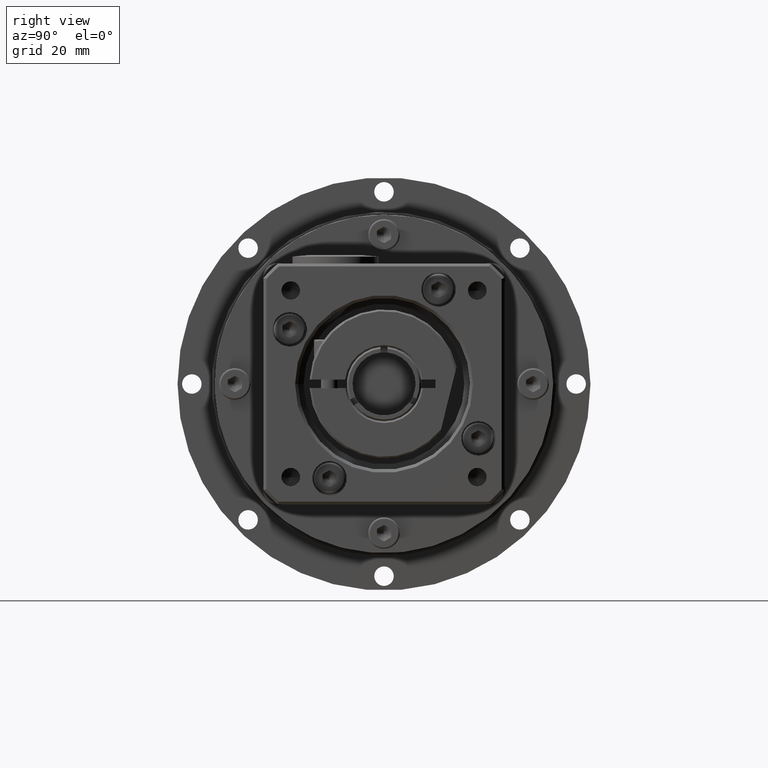
[diagram: clean part render]
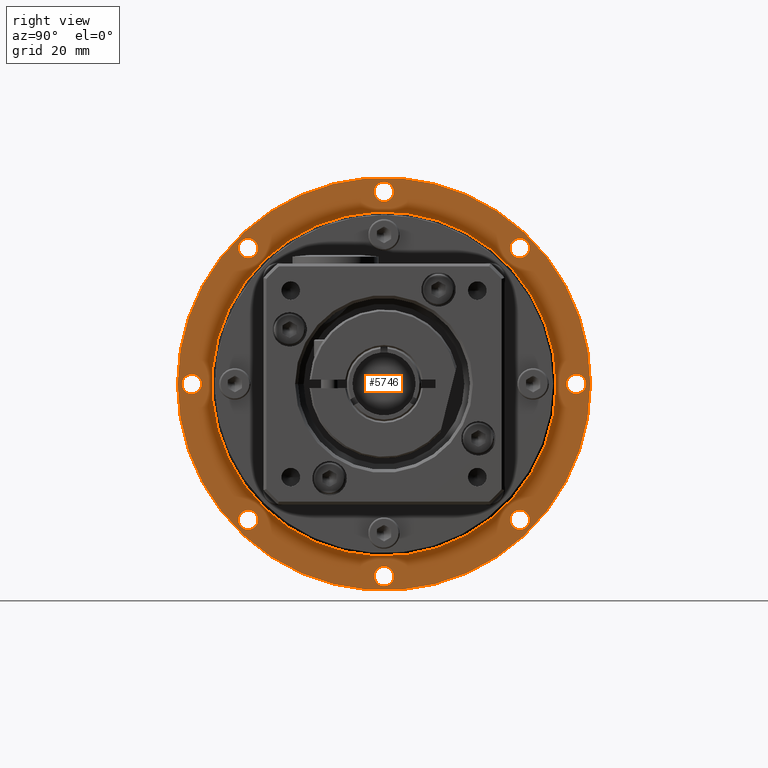
[diagram: same view with one face highlighted and labeled with its STEP entity id]
A machine part, right view. The second image highlights one B-rep face of the part: STEP entity #5746.
In plain terms, the highlighted planar face has unit normal (1, -0, 0).
Its self-contained STEP definition (entity closure, byte-faithful):
#858=PLANE('',#6341);
#1069=FACE_BOUND('',#1904,.T.);
#1070=FACE_BOUND('',#1905,.T.);
#1071=FACE_BOUND('',#1906,.T.);
#1072=FACE_BOUND('',#1907,.T.);
#1073=FACE_BOUND('',#1908,.T.);
#1074=FACE_BOUND('',#1909,.T.);
#1075=FACE_BOUND('',#1910,.T.);
#1076=FACE_BOUND('',#1911,.T.);
#1077=FACE_BOUND('',#1912,.T.);
#1390=FACE_OUTER_BOUND('',#1903,.T.);
#1903=EDGE_LOOP('',(#4404));
#1904=EDGE_LOOP('',(#4405));
#1905=EDGE_LOOP('',(#4406));
#1906=EDGE_LOOP('',(#4407));
#1907=EDGE_LOOP('',(#4408));
#1908=EDGE_LOOP('',(#4409));
#1909=EDGE_LOOP('',(#4410));
#1910=EDGE_LOOP('',(#4411));
#1911=EDGE_LOOP('',(#4412));
#1912=EDGE_LOOP('',(#4413));
#2416=CIRCLE('',#6340,30.);
#2417=CIRCLE('',#6342,36.);
#2418=CIRCLE('',#6343,1.7);
#2419=CIRCLE('',#6344,1.7);
#2420=CIRCLE('',#6345,1.7);
#2421=CIRCLE('',#6346,1.7);
#2422=CIRCLE('',#6347,1.7);
#2423=CIRCLE('',#6348,1.7);
#2424=CIRCLE('',#6349,1.7);
#2425=CIRCLE('',#6350,1.7);
#2822=VERTEX_POINT('',#9345);
#2823=VERTEX_POINT('',#9348);
#2824=VERTEX_POINT('',#9350);
#2825=VERTEX_POINT('',#9352);
#2826=VERTEX_POINT('',#9354);
#2827=VERTEX_POINT('',#9356);
#2828=VERTEX_POINT('',#9358);
#2829=VERTEX_POINT('',#9360);
#2830=VERTEX_POINT('',#9362);
#2831=VERTEX_POINT('',#9364);
#3422=EDGE_CURVE('',#2822,#2822,#2416,.T.);
#3423=EDGE_CURVE('',#2823,#2823,#2417,.T.);
#3424=EDGE_CURVE('',#2824,#2824,#2418,.T.);
#3425=EDGE_CURVE('',#2825,#2825,#2419,.T.);
#3426=EDGE_CURVE('',#2826,#2826,#2420,.T.);
#3427=EDGE_CURVE('',#2827,#2827,#2421,.T.);
#3428=EDGE_CURVE('',#2828,#2828,#2422,.T.);
#3429=EDGE_CURVE('',#2829,#2829,#2423,.T.);
#3430=EDGE_CURVE('',#2830,#2830,#2424,.T.);
#3431=EDGE_CURVE('',#2831,#2831,#2425,.T.);
#4404=ORIENTED_EDGE('',*,*,#3423,.T.);
#4405=ORIENTED_EDGE('',*,*,#3424,.T.);
#4406=ORIENTED_EDGE('',*,*,#3425,.T.);
#4407=ORIENTED_EDGE('',*,*,#3426,.T.);
#4408=ORIENTED_EDGE('',*,*,#3427,.T.);
#4409=ORIENTED_EDGE('',*,*,#3428,.T.);
#4410=ORIENTED_EDGE('',*,*,#3429,.T.);
#4411=ORIENTED_EDGE('',*,*,#3430,.T.);
#4412=ORIENTED_EDGE('',*,*,#3431,.T.);
#4413=ORIENTED_EDGE('',*,*,#3422,.F.);
#5746=ADVANCED_FACE('',(#1390,#1069,#1070,#1071,#1072,#1073,#1074,#1075,
#1076,#1077),#858,.T.);
#6340=AXIS2_PLACEMENT_3D('',#9346,#7519,#7520);
#6341=AXIS2_PLACEMENT_3D('',#9347,#7521,#7522);
#6342=AXIS2_PLACEMENT_3D('',#9349,#7523,#7524);
#6343=AXIS2_PLACEMENT_3D('',#9351,#7525,#7526);
#6344=AXIS2_PLACEMENT_3D('',#9353,#7527,#7528);
#6345=AXIS2_PLACEMENT_3D('',#9355,#7529,#7530);
#6346=AXIS2_PLACEMENT_3D('',#9357,#7531,#7532);
#6347=AXIS2_PLACEMENT_3D('',#9359,#7533,#7534);
#6348=AXIS2_PLACEMENT_3D('',#9361,#7535,#7536);
#6349=AXIS2_PLACEMENT_3D('',#9363,#7537,#7538);
#6350=AXIS2_PLACEMENT_3D('',#9365,#7539,#7540);
#7519=DIRECTION('center_axis',(1.,-3.05311331771913E-16,3.13800764382487E-15));
#7520=DIRECTION('ref_axis',(3.13800764382485E-15,-4.35335528309626E-14,
-1.));
#7521=DIRECTION('center_axis',(1.,-3.05311331771913E-16,3.13800764382487E-15));
#7522=DIRECTION('ref_axis',(3.19744231092045E-15,-4.36983782492462E-14,
-1.));
#7523=DIRECTION('center_axis',(1.,-3.05311331771913E-16,3.13800764382487E-15));
#7524=DIRECTION('ref_axis',(3.13800764382485E-15,-4.35335528309626E-14,
-1.));
#7525=DIRECTION('center_axis',(-1.,3.05311331771913E-16,-3.13800764382487E-15));
#7526=DIRECTION('ref_axis',(2.00301877129466E-15,-0.707106781186578,-0.707106781186516));
#7527=DIRECTION('center_axis',(-1.,3.05311331771913E-16,-3.13800764382487E-15));
#7528=DIRECTION('ref_axis',(-3.0531133177205E-16,-1.,4.36968209228192E-14));
#7529=DIRECTION('center_axis',(-1.,3.05311331771913E-16,-3.13800764382487E-15));
#7530=DIRECTION('ref_axis',(-2.43479419743289E-15,-0.707106781186517,0.707106781186578));
#7531=DIRECTION('center_axis',(-1.,3.05311331771913E-16,-3.13800764382487E-15));
#7532=DIRECTION('ref_axis',(-3.13800764382485E-15,4.36968209228192E-14,
1.));
#7533=DIRECTION('center_axis',(-1.,3.05311331771913E-16,-3.13800764382487E-15));
#7534=DIRECTION('ref_axis',(-2.00301877129466E-15,0.707106781186578,0.707106781186517));
#7535=DIRECTION('center_axis',(-1.,3.05311331771913E-16,-3.13800764382487E-15));
#7536=DIRECTION('ref_axis',(3.05311331772049E-16,1.,-4.35335528309626E-14));
#7537=DIRECTION('center_axis',(-1.,3.05311331771913E-16,-3.13800764382487E-15));
#7538=DIRECTION('ref_axis',(2.43479419743289E-15,0.707106781186517,-0.707106781186578));
#7539=DIRECTION('center_axis',(-1.,3.05311331771913E-16,-3.13800764382487E-15));
#7540=DIRECTION('ref_axis',(3.13800764382485E-15,-4.35335528309626E-14,
-1.));
#9345=CARTESIAN_POINT('',(-8.09516310346685,-19.1307567443876,52.8867726493678));
#9346=CARTESIAN_POINT('Origin',(-8.09516310346686,-49.1307567443876,52.8867726493691));
#9347=CARTESIAN_POINT('Origin',(-8.09516310346685,-19.1307567443876,52.8867726493678));
#9348=CARTESIAN_POINT('',(-8.09516310346685,-13.1307567443876,52.8867726493676));
#9349=CARTESIAN_POINT('Origin',(-8.09516310346686,-49.1307567443876,52.8867726493691));
#9350=CARTESIAN_POINT('',(-8.09516310346677,-26.6447611026565,27.9966139516017));
#9351=CARTESIAN_POINT('Origin',(-8.09516310346678,-25.4426795746393,29.1986954796187));
#9352=CARTESIAN_POINT('',(-8.09516310346675,-50.8307567443891,19.3867726493692));
#9353=CARTESIAN_POINT('Origin',(-8.09516310346675,-49.1307567443891,19.3867726493691));
#9354=CARTESIAN_POINT('',(-8.0951631034668,-74.0209154421551,30.400777007638));
#9355=CARTESIAN_POINT('Origin',(-8.09516310346679,-72.818833914138,29.1986954796208));
#9356=CARTESIAN_POINT('',(-8.09516310346687,-82.6307567443875,54.5867726493706));
#9357=CARTESIAN_POINT('Origin',(-8.09516310346687,-82.6307567443876,52.8867726493706));
#9358=CARTESIAN_POINT('',(-8.09516310346694,-71.6167523861187,77.7769313471366));
#9359=CARTESIAN_POINT('Origin',(-8.09516310346694,-72.8188339141359,76.5748498191195));
#9360=CARTESIAN_POINT('',(-8.09516310346696,-47.4307567443861,86.386772649369));
#9361=CARTESIAN_POINT('Origin',(-8.09516310346696,-49.1307567443861,86.3867726493691));
#9362=CARTESIAN_POINT('',(-8.09516310346692,-24.2405980466201,75.3727682911002));
#9363=CARTESIAN_POINT('Origin',(-8.09516310346693,-25.4426795746372,76.5748498191174));
#9364=CARTESIAN_POINT('',(-8.09516310346684,-15.6307567443877,51.1867726493677));
#9365=CARTESIAN_POINT('Origin',(-8.09516310346685,-15.6307567443876,52.8867726493677));